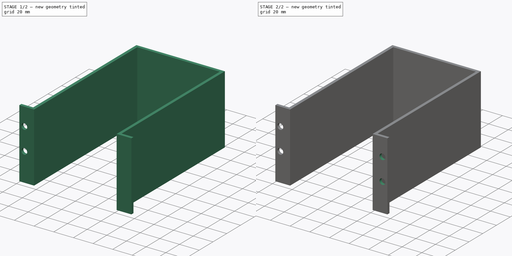
[diagram: build sequence overview — one tinted view per stage of 2, left to right]
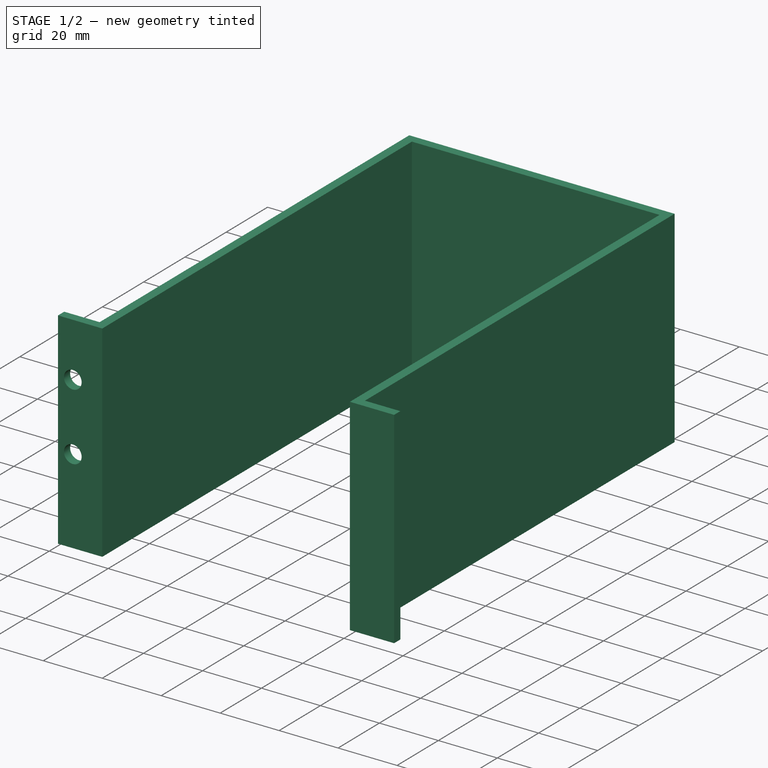
[diagram: stage 1 of 2 — iso view after this stage's code; geometry added in this stage tinted green]
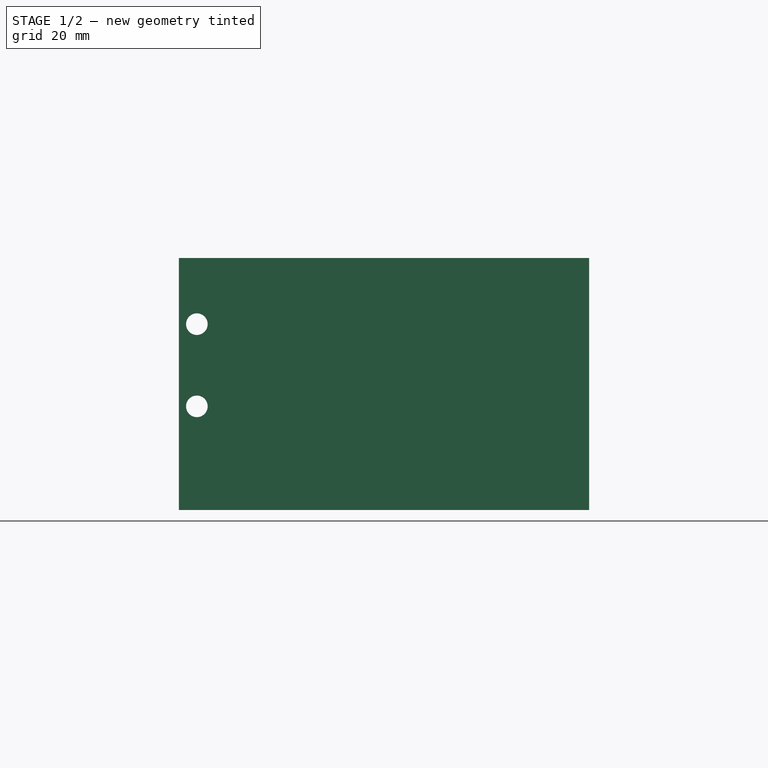
[diagram: stage 1 of 2 — front view after this stage's code; geometry added in this stage tinted green]
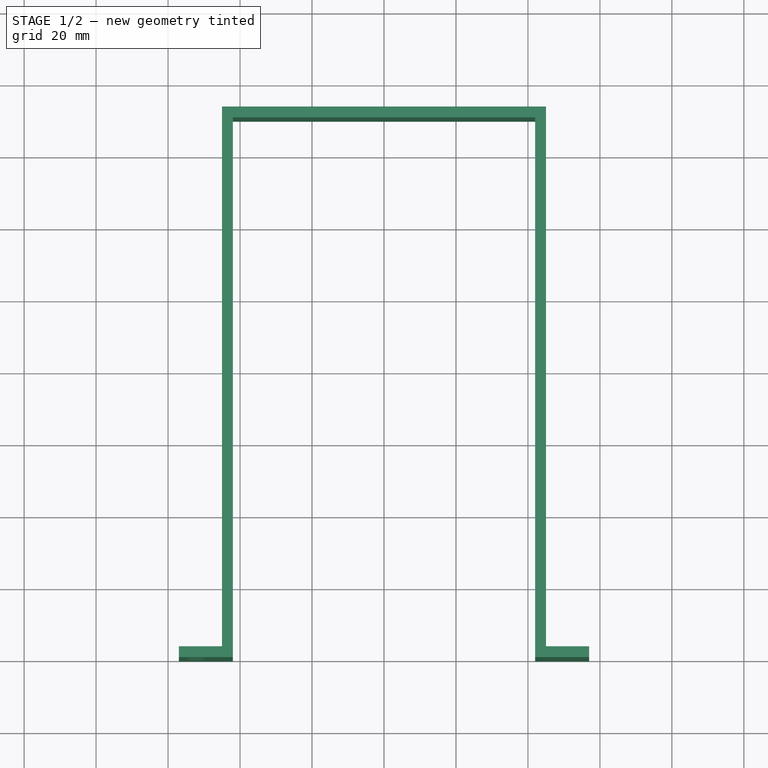
[diagram: stage 1 of 2 — top view after this stage's code; geometry added in this stage tinted green]
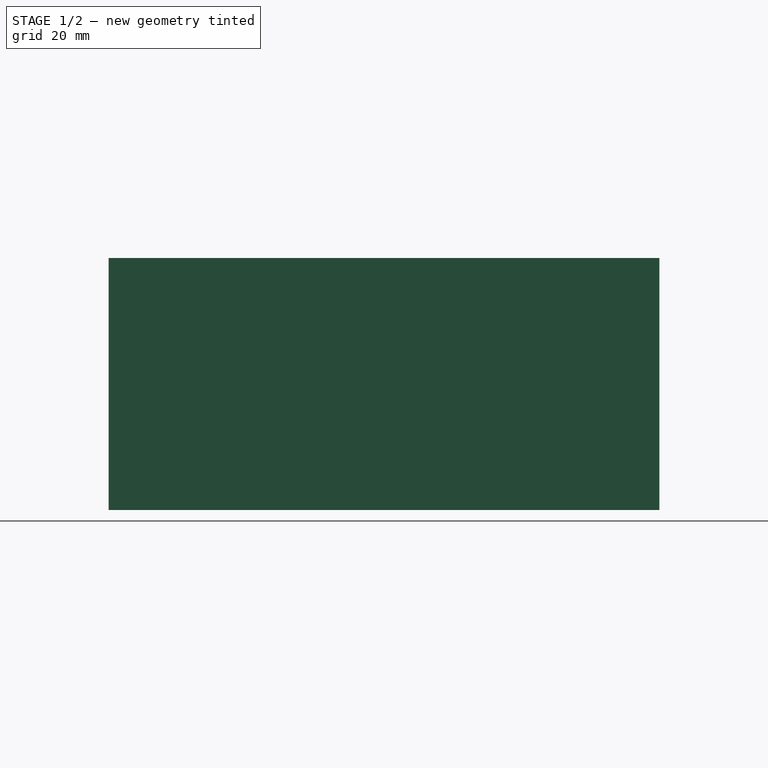
[diagram: stage 1 of 2 — right view after this stage's code; geometry added in this stage tinted green]
FCSTD DOCUMENT  (FreeCAD 0.19R24366 (Git))
Label: corsair cover
License: All rights reserved
LicenseURL: http://en.wikipedia.org/wiki/All_rights_reserved
objects: Sketcher::SketchObject×2, PartDesign::Pad×1, PartDesign::Hole×1, PartDesign::Mirrored×1, PartDesign::Body×1
note: 8 computed .brp shape members not serialized (recipe doc carries the construction recipe); baked Part::Feature solids carry a one-line shape summary decoded from their .brp

FEATURE [Sketcher::SketchObject] Sketch
  FullyConstrained = true
  MapMode = 5
  Support = -> [XY_Plane]
  sketch-geometry (12):
    g0: LineSegment StartX=-57 StartY=0 StartZ=0 EndX=-42 EndY=0 EndZ=0
    g1: LineSegment StartX=-42 StartY=0 StartZ=0 EndX=-42 EndY=150 EndZ=0
    g2: LineSegment StartX=-42 StartY=150 StartZ=0 EndX=42 EndY=150 EndZ=0
    g3: LineSegment StartX=42 StartY=150 StartZ=0 EndX=42 EndY=0 EndZ=0
    g4: LineSegment StartX=42 StartY=0 StartZ=0 EndX=57 EndY=0 EndZ=0
    g5: LineSegment StartX=-57 StartY=0 StartZ=0 EndX=-57 EndY=3 EndZ=0
    g6: LineSegment StartX=-57 StartY=3 StartZ=0 EndX=-45 EndY=3 EndZ=0
    g7: LineSegment StartX=-45 StartY=3 StartZ=0 EndX=-45 EndY=153 EndZ=0
    g8: LineSegment StartX=-45 StartY=153 StartZ=0 EndX=45 EndY=153 EndZ=0
    g9: LineSegment StartX=45 StartY=153 StartZ=0 EndX=45 EndY=3 EndZ=0
    g10: LineSegment StartX=45 StartY=3 StartZ=0 EndX=57 EndY=3 EndZ=0
    g11: LineSegment StartX=57 StartY=3 StartZ=0 EndX=57 EndY=0 EndZ=0
  constraints (35):
    c: PointOnObject(g0,g-1)
    c: PointOnObject(g0,g-1)
    c: Coincident(g0,g1)
    c: Vertical(g1)
    c: Coincident(g1,g2)
    c: Horizontal(g2)
    c: Coincident(g2,g3)
    c: Vertical(g3)
    c: Coincident(g3,g4)
    c: PointOnObject(g4,g-1)
    c: DistanceX(g0,g0) = 15
    c: DistanceX(g4,g4) = 15
    c: Symmetric(g0,g3,g-1)
    c: DistanceX(g2,g2) = 84
    c: DistanceY(g1,g1) = 150
    c: Coincident(g0,g5)
    c: Vertical(g5)
    c: Coincident(g5,g6)
    c: Horizontal(g6)
    c: Coincident(g6,g7)
    c: Vertical(g7)
    c: Coincident(g7,g8)
    c: Horizontal(g8)
    c: Coincident(g8,g9)
    c: Vertical(g9)
    c: Coincident(g9,g10)
    c: Coincident(g10,g11)
    c: Coincident(g11,g4)
    c: Vertical(g11)
    c: Horizontal(g10)
    c: DistanceY(g5,g5) = 3
    c: DistanceY(g11,g11) = 3
    c: DistanceX(g6,g0) = 3
    c: DistanceX(g3,g9) = 3
    c: DistanceY(g2,g8) = 3
FEATURE [PartDesign::Pad] Pad
  Direction = (1,1,1)
  Length = 70
  Length2 = 100
  Profile = -> Sketch
  Type = 0
FEATURE [Sketcher::SketchObject] Sketch001
  FullyConstrained = false
  MapMode = 5
  Placement = pos=(0,0,0) rot=(1,0,0;1.5708rad)
  Support = -> [XZ_Plane]
  sketch-geometry (2):
    g0: Circle CenterX=-52 CenterY=51.6302 CenterZ=0 NormalX=0 NormalY=0 NormalZ=1 AngleXU=0 Radius=2.5
    g1: Circle CenterX=-52 CenterY=28.7904 CenterZ=0 NormalX=0 NormalY=0 NormalZ=1 AngleXU=0 Radius=2.5
  constraints (4):
    c: Radius(g0) = 2.5
    c: Radius(g1) = 2.5
    c: DistanceX(g0,g-1) = 52
    c: DistanceX(g1,g-1) = 52
FEATURE [PartDesign::Hole] Hole
  BaseFeature = -> Pad
  Depth = 25
  DepthType = 0
  Diameter = 6
  DrillForDepth = false
  DrillPoint = 1
  DrillPointAngle = 118
  HoleCutCountersinkAngle = 90
  HoleCutCustomValues = false
  HoleCutDepth = 0
  HoleCutDiameter = 6.1
  HoleCutType = 0
  ModelActualThread = false
  Profile = -> Sketch001
  Tapered = false
  TaperedAngle = 90
  ThreadAngle = 0
  ThreadClass = 0
  ThreadCutOffInner = 0
  ThreadCutOffOuter = 0
  ThreadDirection = 0
  ThreadFit = 0
  ThreadPitch = 0
  ThreadSize = 0
  ThreadType = 0
  Threaded = false
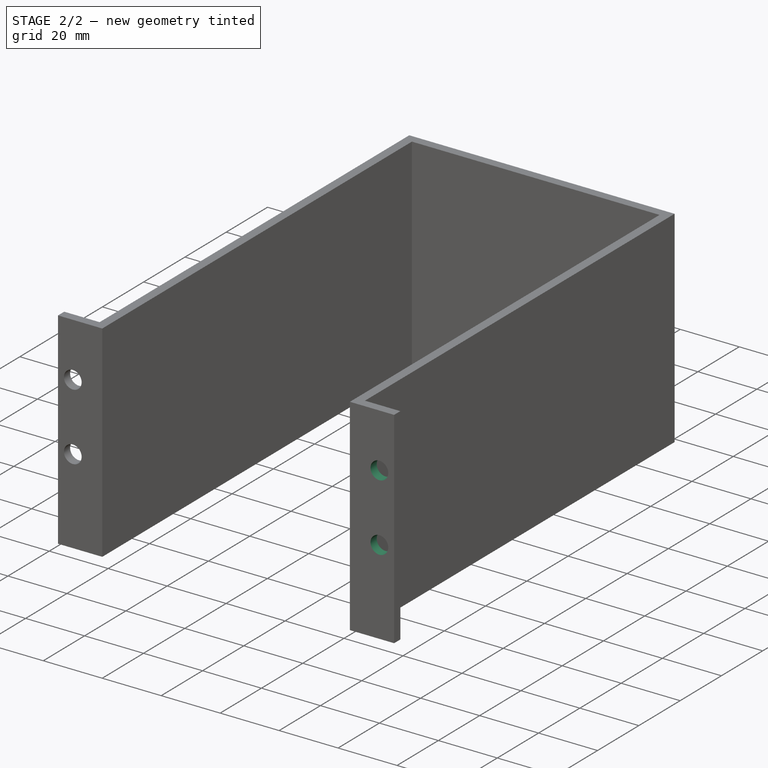
[diagram: stage 2 of 2 — iso view after this stage's code; geometry added in this stage tinted green]
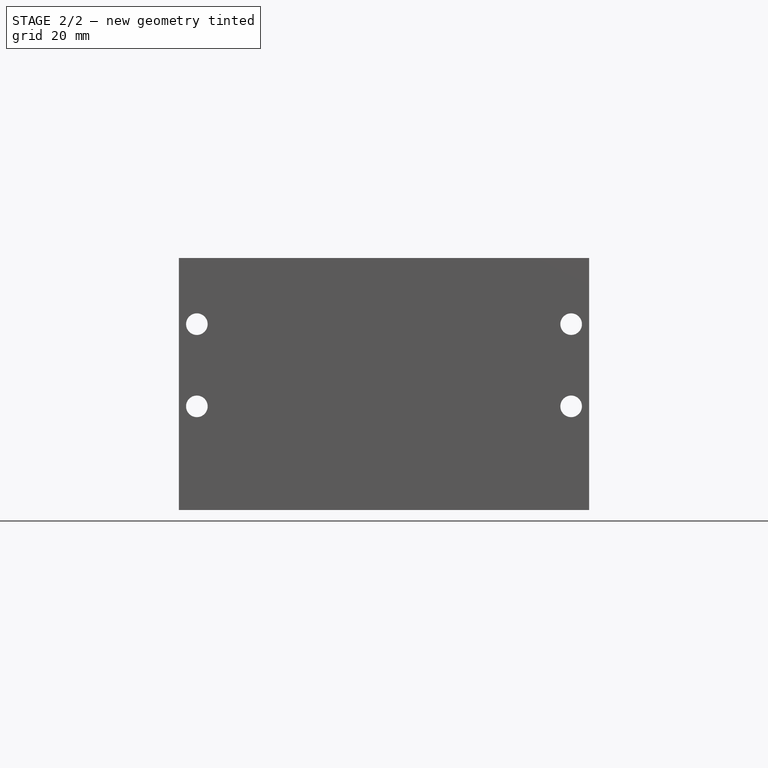
[diagram: stage 2 of 2 — front view after this stage's code; geometry added in this stage tinted green]
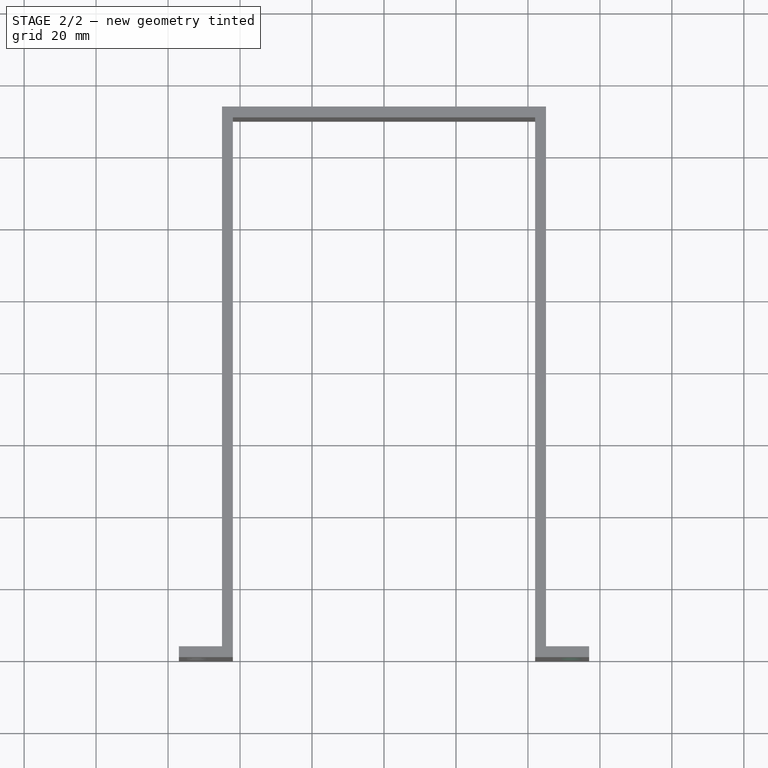
[diagram: stage 2 of 2 — top view after this stage's code; geometry added in this stage tinted green]
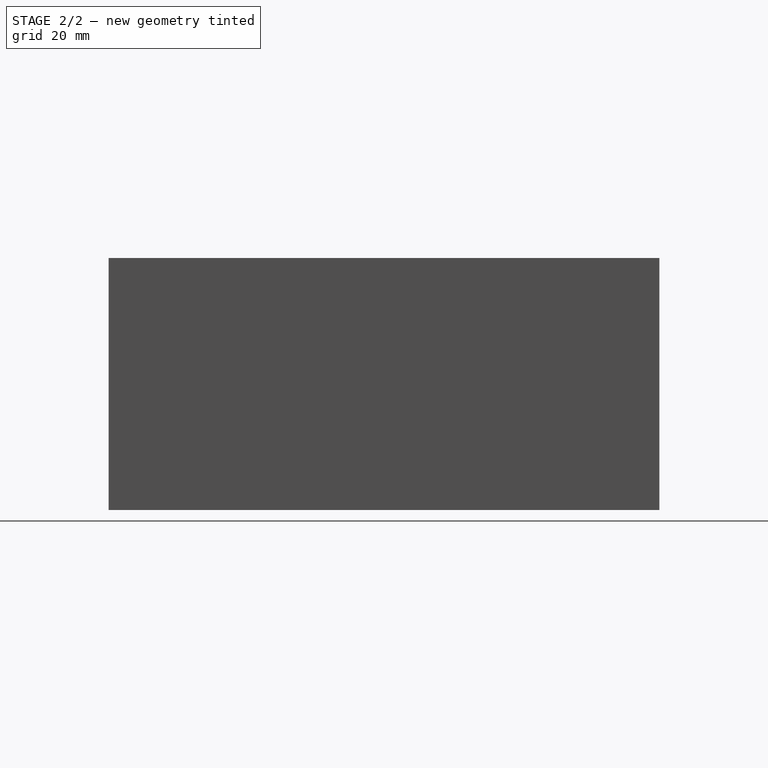
[diagram: stage 2 of 2 — right view after this stage's code; geometry added in this stage tinted green]
FEATURE [PartDesign::Mirrored] Mirrored
  BaseFeature = -> Hole
  MirrorPlane = -> Sketch001 [V_Axis]
  Originals = -> [Hole]
FEATURE [PartDesign::Body] Body
  Group = -> [Sketch,Pad,Sketch001,Hole,Mirrored]
  Origin = -> Origin
  Tip = -> Mirrored
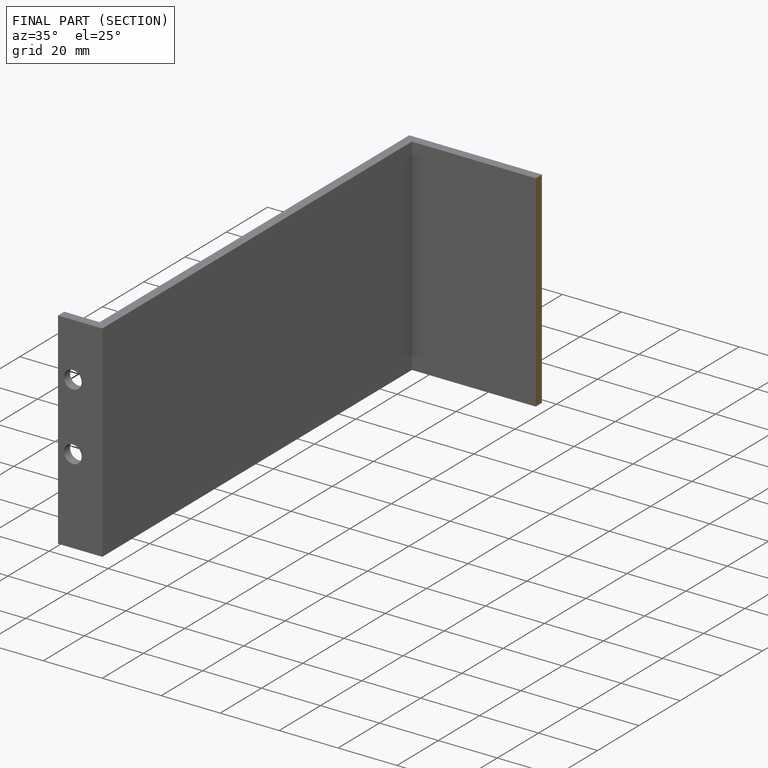
[diagram: finished part — half-section view (interior)]
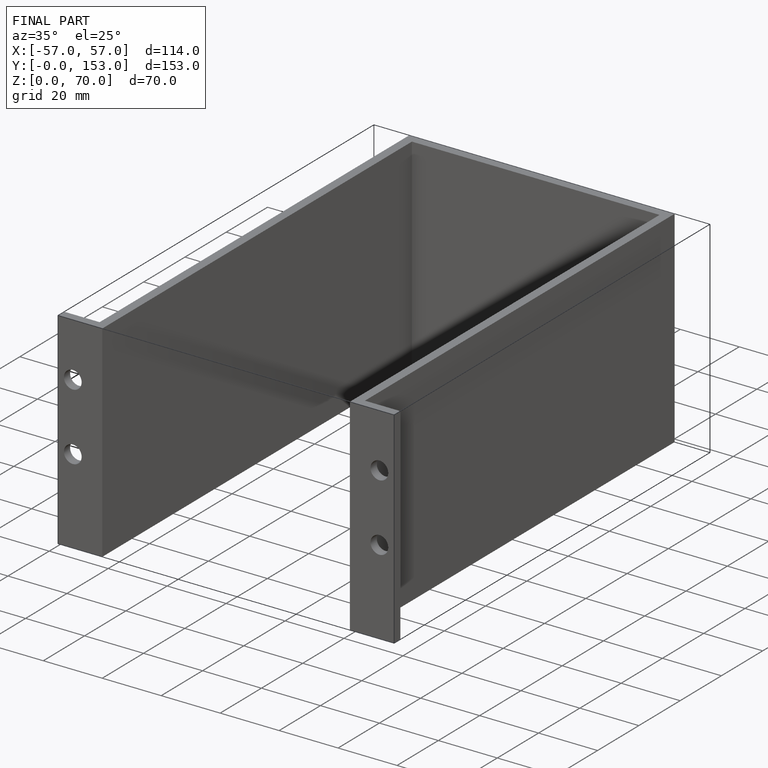
[diagram: finished part — iso view with bounding-box wireframe]
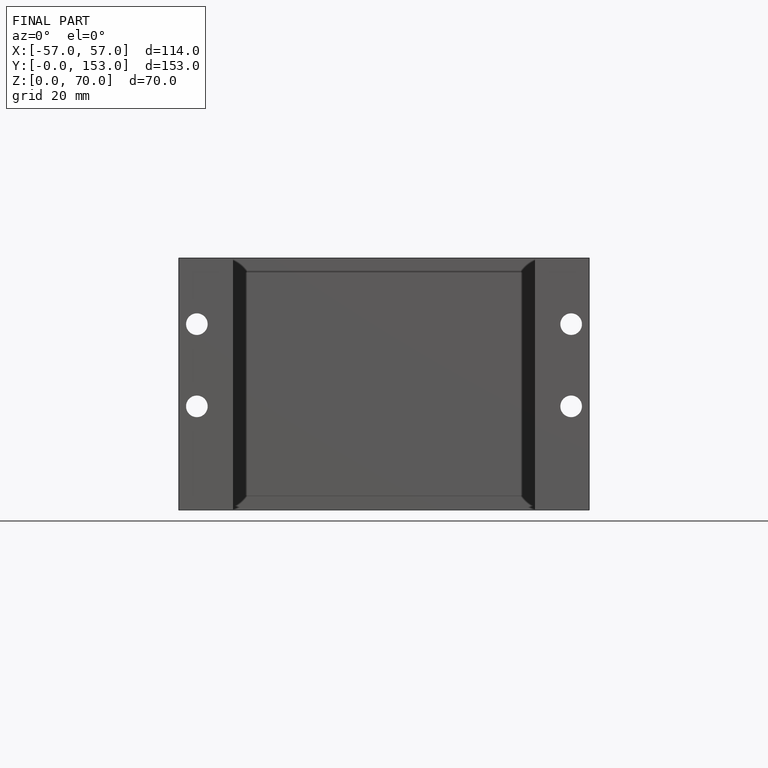
[diagram: finished part — front view with bounding-box wireframe]
